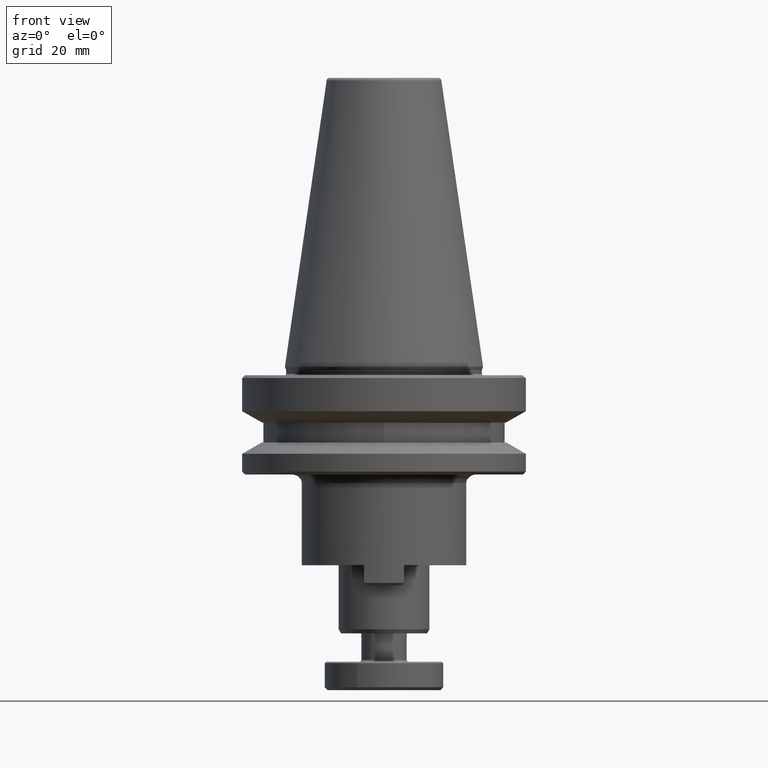
[diagram: clean part render]
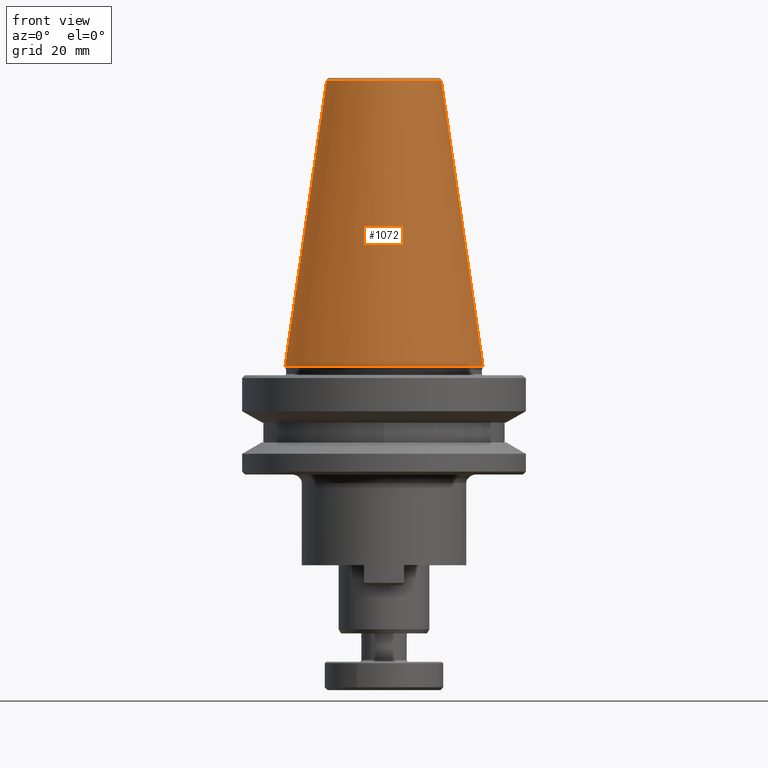
[diagram: same view with one face highlighted and labeled with its STEP entity id]
A machine part, front view. The second image highlights one B-rep face of the part: STEP entity #1072.
In plain terms, the highlighted conical surface has half-angle 8.297 deg.
Its self-contained STEP definition (entity closure, byte-faithful):
#32 = CARTESIAN_POINT ( 'NONE',  ( 34.92500000000000400, 0.0000000000000000000, -1.199480677166285000E-014 ) ) ;
#122 = CARTESIAN_POINT ( 'NONE',  ( 20.20381605200000100, -3.453206509275169000E-010, 100.9443082270000400 ) ) ;
#191 = DIRECTION ( 'NONE',  ( -0.1443082272630906200, 0.0000000000000000000, -0.9895327864927892000 ) ) ;
#194 = DIRECTION ( 'NONE',  ( -1.000000000000000000, 0.0000000000000000000, 0.0000000000000000000 ) ) ;
#200 = CARTESIAN_POINT ( 'NONE',  ( -3.469446951953614200E-014, 0.0000000000000000000, -3.975038238729176800E-014 ) ) ;
#203 = DIRECTION ( 'NONE',  ( -3.434447178715203600E-016, 0.0000000000000000000, -1.000000000000000000 ) ) ;
#209 = DIRECTION ( 'NONE',  ( -1.000000000000000000, 0.0000000000000000000, 3.434447178715204600E-016 ) ) ;
#216 = EDGE_LOOP ( 'NONE', ( #2276, #2033, #730, #1422 ) ) ;
#557 = FACE_OUTER_BOUND ( 'NONE', #216, .T. ) ;
#632 = CONICAL_SURFACE ( 'NONE', #1889, 34.92500000000000400, 0.1448138465431577400 ) ;
#654 = CARTESIAN_POINT ( 'NONE',  ( 1.848892746611746400E-029, 0.0000000000000000000, 100.9443082270000600 ) ) ;
#667 = AXIS2_PLACEMENT_3D ( 'NONE', #1146, #1600, #194 ) ;
#730 = ORIENTED_EDGE ( 'NONE', *, *, #2621, .T. ) ;
#890 = LINE ( 'NONE', #2428, #942 ) ;
#942 = VECTOR ( 'NONE', #1077, 1000.000000000000100 ) ;
#1043 = CIRCLE ( 'NONE', #667, 34.92500000000000400 ) ;
#1072 = ADVANCED_FACE ( 'NONE', ( #557 ), #632, .T. ) ;
#1077 = DIRECTION ( 'NONE',  ( 0.1443082272630899800, 1.767266086083723800E-017, -0.9895327864927893100 ) ) ;
#1146 = CARTESIAN_POINT ( 'NONE',  ( -3.466878945975778700E-014, 0.0000000000000000000, 0.0000000000000000000 ) ) ;
#1256 = VERTEX_POINT ( 'NONE', #32 ) ;
#1370 = CARTESIAN_POINT ( 'NONE',  ( -34.92500000000004000, 0.0000000000000000000, -2.775557561562891400E-014 ) ) ;
#1391 = CIRCLE ( 'NONE', #2745, 20.20381605199999300 ) ;
#1422 = ORIENTED_EDGE ( 'NONE', *, *, #1505, .T. ) ;
#1445 = EDGE_CURVE ( 'NONE', #1958, #1256, #890, .T. ) ;
#1477 = CARTESIAN_POINT ( 'NONE',  ( -34.92500000000001100, 4.277078946022132500E-015, 1.199480677166283100E-014 ) ) ;
#1505 = EDGE_CURVE ( 'NONE', #2799, #1256, #1043, .T. ) ;
#1600 = DIRECTION ( 'NONE',  ( 3.434447178715200600E-016, 0.0000000000000000000, 1.000000000000000000 ) ) ;
#1763 = VERTEX_POINT ( 'NONE', #2870 ) ;
#1889 = AXIS2_PLACEMENT_3D ( 'NONE', #200, #203, #209 ) ;
#1931 = EDGE_CURVE ( 'NONE', #1958, #1763, #1391, .T. ) ;
#1958 = VERTEX_POINT ( 'NONE', #122 ) ;
#2024 = DIRECTION ( 'NONE',  ( -3.434447178715200600E-016, -0.0000000000000000000, -1.000000000000000000 ) ) ;
#2033 = ORIENTED_EDGE ( 'NONE', *, *, #1931, .T. ) ;
#2066 = VECTOR ( 'NONE', #191, 1000.000000000000200 ) ;
#2070 = LINE ( 'NONE', #1370, #2066 ) ;
#2244 = DIRECTION ( 'NONE',  ( -1.000000000000000000, 0.0000000000000000000, 0.0000000000000000000 ) ) ;
#2276 = ORIENTED_EDGE ( 'NONE', *, *, #1445, .F. ) ;
#2428 = CARTESIAN_POINT ( 'NONE',  ( 34.92499999999996900, 4.277078946022131700E-015, -5.174518915895462200E-014 ) ) ;
#2621 = EDGE_CURVE ( 'NONE', #1763, #2799, #2070, .T. ) ;
#2745 = AXIS2_PLACEMENT_3D ( 'NONE', #654, #2024, #2244 ) ;
#2799 = VERTEX_POINT ( 'NONE', #1477 ) ;
#2870 = CARTESIAN_POINT ( 'NONE',  ( -20.20381605200000100, 0.0000000000000000000, 100.9443082270000100 ) ) ;